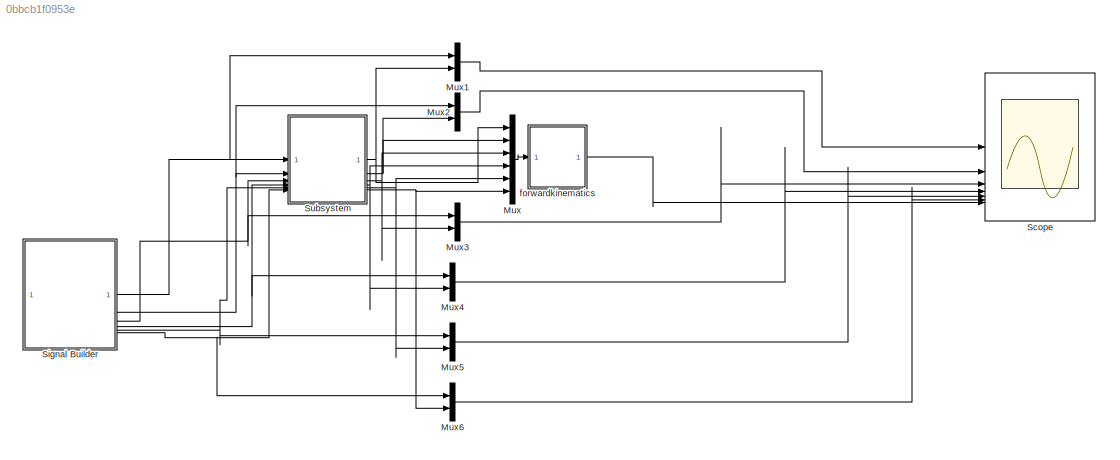
MODEL slx_0bbcb1f0953e
KIND model
CONFIG AbsTol = auto
CONFIG EnableMultiTasking = off
CONFIG FixedStep = auto
CONFIG MaxStep = auto
CONFIG MinStep = auto
CONFIG RelTol = 1e-3
CONFIG SampleTimeConstraint = Unconstrained
CONFIG SolverName = VariableStepAuto
CONFIG StartTime = 0.0
CONFIG StopTime = 10.0
BLOCK [Mux] Mux
  DisplayOption = bar
  Inputs = 6
BLOCK [Mux] Mux1
  DisplayOption = bar
  Inputs = 2
BLOCK [Mux] Mux2
  DisplayOption = bar
  Inputs = 2
BLOCK [Mux] Mux3
  DisplayOption = bar
  Inputs = 2
BLOCK [Mux] Mux4
  DisplayOption = bar
  Inputs = 2
BLOCK [Mux] Mux5
  DisplayOption = bar
  Inputs = 2
BLOCK [Mux] Mux6
  DisplayOption = bar
  Inputs = 2
BLOCK [Scope] Scope
  Floating = off
  NumInputPorts = 7
  ScopeSpecificationString = Simulink.scopes.TimeScopeBlockCfg('CurrentConfiguration', extmgr.ConfigurationSet(extmgr.Configuration('Core','General UI',true),extmgr.Configuration('Core','Source UI',true),extmgr.Configuration('Sources','WiredSimulink',true),extmgr.Configuration('Visuals','Time Domain',true,'SerializedDisplays',{struct('MinYLimReal','-0.16957','MaxYLimReal','1.41515','YLabelReal','','MinYLimMag','0.00000','MaxY...<+1347ch>
BLOCK [SubSystem] Signal Builder
  ClipboardFcn = sigbuilder_block('clipboard');
  CloseFcn = sigbuilder_block('close');
  ContinueFcn = sigbuilder_block('continue');
  CopyFcn = sigbuilder_block('copy');
  DeleteFcn = sigbuilder_block('delete');
  LoadFcn = sigbuilder_block('load');
  MaskHideContents = on
  ModelCloseFcn = sigbuilder_block('modelClose');
  NameChangeFcn = sigbuilder_block('namechange');
  OpenFcn = sigbuilder_block('open',[426 117 573 342.75 ]);
  PauseFcn = sigbuilder_block('pause');
  PreSaveFcn = sigbuilder_block('preSave');
  StartFcn = sigbuilder_block('start');
  StopFcn = sigbuilder_block('stop');
  Tag = STV Subsys
BLOCK [Demux] Signal Builder/Demux
  DisplayOption = none
  Outputs = 6
  Tag = STV Demux
BLOCK [FromWorkspace] Signal Builder/FromWs
  Tag = STV FromWs
  VariableName = tuvar
BLOCK [Outport] Signal Builder/Signal 1
  Tag = STV Outport
BLOCK [Outport] Signal Builder/Signal 2
  Port = 2
  Tag = STV Outport
BLOCK [Outport] Signal Builder/Signal 3
  Port = 3
  Tag = STV Outport
BLOCK [Outport] Signal Builder/Signal 4
  Port = 4
  Tag = STV Outport
BLOCK [Outport] Signal Builder/Signal 5
  Port = 5
  Tag = STV Outport
BLOCK [Outport] Signal Builder/Signal 6
  Port = 6
  Tag = STV Outport
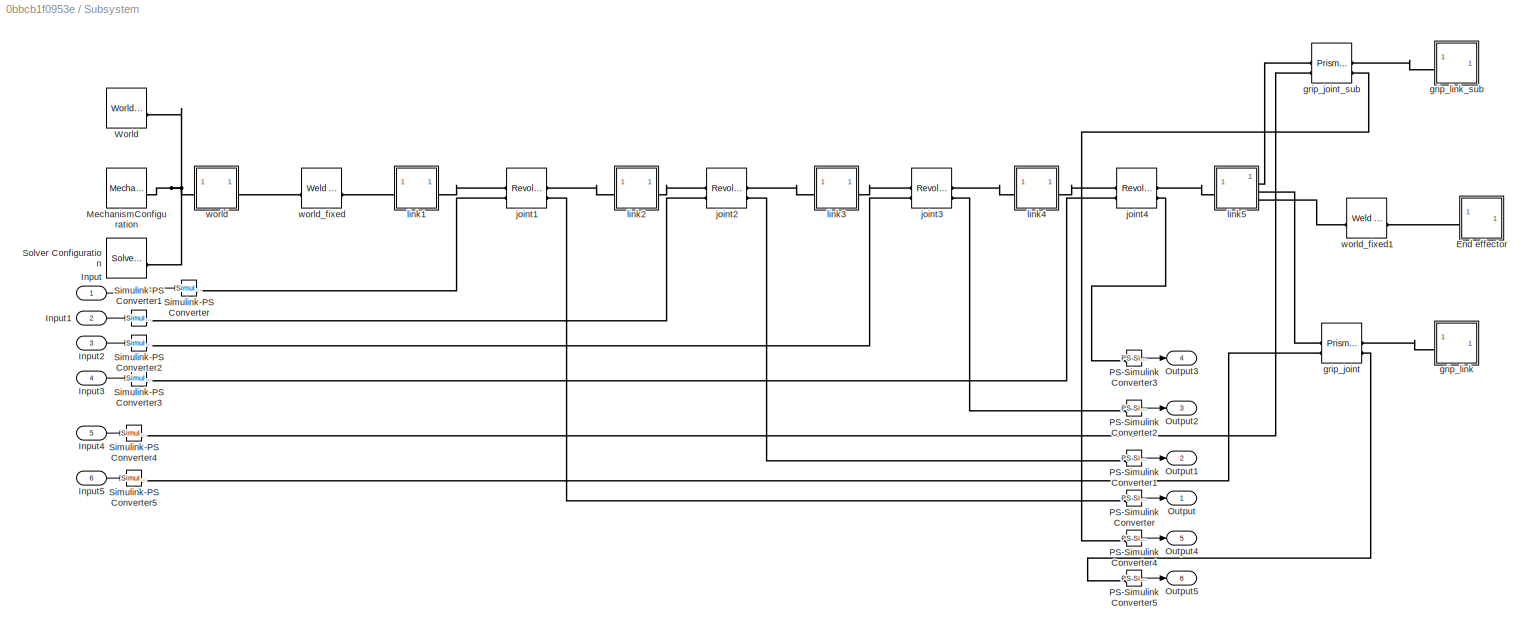
BLOCK [SubSystem] Subsystem
BLOCK [SubSystem] Subsystem/End effector
BLOCK [Reference] Subsystem/End effector/End   REF=sm_lib/Body Elements/Brick Solid
  SourceBlock = sm_lib/Body Elements/Brick Solid
  SourceType = Brick Solid
BLOCK [PMIOPort] Subsystem/End effector/F
  Side = Left
BLOCK [Reference] Subsystem/End effector/Inertia  REF=sm_lib/Body Elements/Inertia
  SourceBlock = sm_lib/Body Elements/Inertia
  SourceType = Inertia
BLOCK [Reference] Subsystem/End effector/InertiaOriginTransform  REF=sm_lib/Frames and
Transforms/Rigid
Transform
  SourceBlock = sm_lib/Frames and\nTransforms/Rigid\nTransform
  SourceType = Rigid\nTransform
BLOCK [Reference] Subsystem/End effector/ReferenceFrame  REF=sm_lib/Frames and
Transforms/Reference
Frame
  SourceBlock = sm_lib/Frames and\nTransforms/Reference\nFrame
  SourceType = Reference\nFrame
BLOCK [Reference] Subsystem/End effector/VisualOriginTransform  REF=sm_lib/Frames and
Transforms/Rigid
Transform
  SourceBlock = sm_lib/Frames and\nTransforms/Rigid\nTransform
  SourceType = Rigid\nTransform
BLOCK [Reference] Subsystem/End effector/grip_joint_sub_AxisInvTransform  REF=sm_lib/Frames and
Transforms/Rigid
Transform
  SourceBlock = sm_lib/Frames and\nTransforms/Rigid\nTransform
  SourceType = Rigid\nTransform
BLOCK [Inport] Subsystem/Input
BLOCK [Inport] Subsystem/Input1
  Port = 2
BLOCK [Inport] Subsystem/Input2
  Port = 3
BLOCK [Inport] Subsystem/Input3
  Port = 4
BLOCK [Inport] Subsystem/Input4
  Port = 5
BLOCK [Inport] Subsystem/Input5
  Port = 6
BLOCK [Reference] Subsystem/MechanismConfiguration  REF=sm_lib/Utilities/Mechanism
Configuration
  SourceBlock = sm_lib/Utilities/Mechanism\nConfiguration
  SourceType = Mechanism\nConfiguration
BLOCK [Outport] Subsystem/Output
BLOCK [Outport] Subsystem/Output1
  Port = 2
BLOCK [Outport] Subsystem/Output2
  Port = 3
BLOCK [Outport] Subsystem/Output3
  Port = 4
BLOCK [Outport] Subsystem/Output4
  Port = 5
BLOCK [Outport] Subsystem/Output5
  Port = 6
BLOCK [Reference] Subsystem/PS-Simulink Converter  REF=nesl_utility/PS-Simulink
Converter
  SourceBlock = nesl_utility/PS-Simulink\nConverter
  SourceType = PS-Simulink\nConverter
BLOCK [Reference] Subsystem/PS-Simulink Converter1  REF=nesl_utility/PS-Simulink
Converter
  SourceBlock = nesl_utility/PS-Simulink\nConverter
  SourceType = PS-Simulink\nConverter
BLOCK [Reference] Subsystem/PS-Simulink Converter2  REF=nesl_utility/PS-Simulink
Converter
  SourceBlock = nesl_utility/PS-Simulink\nConverter
  SourceType = PS-Simulink\nConverter
BLOCK [Reference] Subsystem/PS-Simulink Converter3  REF=nesl_utility/PS-Simulink
Converter
  SourceBlock = nesl_utility/PS-Simulink\nConverter
  SourceType = PS-Simulink\nConverter
BLOCK [Reference] Subsystem/PS-Simulink Converter4  REF=nesl_utility/PS-Simulink
Converter
  SourceBlock = nesl_utility/PS-Simulink\nConverter
  SourceType = PS-Simulink\nConverter
BLOCK [Reference] Subsystem/PS-Simulink Converter5  REF=nesl_utility/PS-Simulink
Converter
  SourceBlock = nesl_utility/PS-Simulink\nConverter
  SourceType = PS-Simulink\nConverter
BLOCK [Reference] Subsystem/Simulink-PS Converter  REF=nesl_utility/Simulink-PS
Converter
  SourceBlock = nesl_utility/Simulink-PS\nConverter
  SourceType = Simulink-PS\nConverter
BLOCK [Reference] Subsystem/Simulink-PS Converter1  REF=nesl_utility/Simulink-PS
Converter
  SourceBlock = nesl_utility/Simulink-PS\nConverter
  SourceType = Simulink-PS\nConverter
BLOCK [Reference] Subsystem/Simulink-PS Converter2  REF=nesl_utility/Simulink-PS
Converter
  SourceBlock = nesl_utility/Simulink-PS\nConverter
  SourceType = Simulink-PS\nConverter
BLOCK [Reference] Subsystem/Simulink-PS Converter3  REF=nesl_utility/Simulink-PS
Converter
  SourceBlock = nesl_utility/Simulink-PS\nConverter
  SourceType = Simulink-PS\nConverter
BLOCK [Reference] Subsystem/Simulink-PS Converter4  REF=nesl_utility/Simulink-PS
Converter
  SourceBlock = nesl_utility/Simulink-PS\nConverter
  SourceType = Simulink-PS\nConverter
BLOCK [Reference] Subsystem/Simulink-PS Converter5  REF=nesl_utility/Simulink-PS
Converter
  SourceBlock = nesl_utility/Simulink-PS\nConverter
  SourceType = Simulink-PS\nConverter
BLOCK [Reference] Subsystem/Solver Configuration  REF=nesl_utility/Solver
Configuration
  SourceBlock = nesl_utility/Solver\nConfiguration
  SourceType = Solver\nConfiguration
BLOCK [Reference] Subsystem/World  REF=sm_lib/Frames and
Transforms/World Frame
  SourceBlock = sm_lib/Frames and\nTransforms/World Frame
  SourceType = World Frame
BLOCK [Reference] Subsystem/grip_joint  REF=sm_lib/Joints/Prismatic
Joint
  SourceBlock = sm_lib/Joints/Prismatic\nJoint
  SourceType = Prismatic\nJoint
BLOCK [Reference] Subsystem/grip_joint_sub  REF=sm_lib/Joints/Prismatic
Joint
  SourceBlock = sm_lib/Joints/Prismatic\nJoint
  SourceType = Prismatic\nJoint
BLOCK [SubSystem] Subsystem/grip_link
BLOCK [PMIOPort] Subsystem/grip_link/F
  Side = Left
BLOCK [Reference] Subsystem/grip_link/Inertia  REF=sm_lib/Body Elements/Inertia
  SourceBlock = sm_lib/Body Elements/Inertia
  SourceType = Inertia
BLOCK [Reference] Subsystem/grip_link/InertiaOriginTransform  REF=sm_lib/Frames and
Transforms/Rigid
Transform
  SourceBlock = sm_lib/Frames and\nTransforms/Rigid\nTransform
  SourceType = Rigid\nTransform
BLOCK [Reference] Subsystem/grip_link/ReferenceFrame  REF=sm_lib/Frames and
Transforms/Reference
Frame
  SourceBlock = sm_lib/Frames and\nTransforms/Reference\nFrame
  SourceType = Reference\nFrame
BLOCK [Reference] Subsystem/grip_link/Visual  REF=sm_lib/Body Elements/File Solid
  SourceBlock = sm_lib/Body Elements/File Solid
  SourceType = File Solid
BLOCK [Reference] Subsystem/grip_link/VisualOriginTransform  REF=sm_lib/Frames and
Transforms/Rigid
Transform
  SourceBlock = sm_lib/Frames and\nTransforms/Rigid\nTransform
  SourceType = Rigid\nTransform
BLOCK [Reference] Subsystem/grip_link/grip_joint_AxisInvTransform  REF=sm_lib/Frames and
Transforms/Rigid
Transform
  SourceBlock = sm_lib/Frames and\nTransforms/Rigid\nTransform
  SourceType = Rigid\nTransform
BLOCK [SubSystem] Subsystem/grip_link_sub
BLOCK [PMIOPort] Subsystem/grip_link_sub/F
  Side = Left
BLOCK [Reference] Subsystem/grip_link_sub/Inertia  REF=sm_lib/Body Elements/Inertia
  SourceBlock = sm_lib/Body Elements/Inertia
  SourceType = Inertia
BLOCK [Reference] Subsystem/grip_link_sub/InertiaOriginTransform  REF=sm_lib/Frames and
Transforms/Rigid
Transform
  SourceBlock = sm_lib/Frames and\nTransforms/Rigid\nTransform
  SourceType = Rigid\nTransform
BLOCK [Reference] Subsystem/grip_link_sub/ReferenceFrame  REF=sm_lib/Frames and
Transforms/Reference
Frame
  SourceBlock = sm_lib/Frames and\nTransforms/Reference\nFrame
  SourceType = Reference\nFrame
BLOCK [Reference] Subsystem/grip_link_sub/Visual  REF=sm_lib/Body Elements/File Solid
  SourceBlock = sm_lib/Body Elements/File Solid
  SourceType = File Solid
BLOCK [Reference] Subsystem/grip_link_sub/VisualOriginTransform  REF=sm_lib/Frames and
Transforms/Rigid
Transform
  SourceBlock = sm_lib/Frames and\nTransforms/Rigid\nTransform
  SourceType = Rigid\nTransform
BLOCK [Reference] Subsystem/grip_link_sub/grip_joint_sub_AxisInvTransform  REF=sm_lib/Frames and
Transforms/Rigid
Transform
  SourceBlock = sm_lib/Frames and\nTransforms/Rigid\nTransform
  SourceType = Rigid\nTransform
BLOCK [Reference] Subsystem/joint1  REF=sm_lib/Joints/Revolute Joint
  SourceBlock = sm_lib/Joints/Revolute Joint
  SourceType = Revolute Joint
BLOCK [Reference] Subsystem/joint2  REF=sm_lib/Joints/Revolute Joint
  SourceBlock = sm_lib/Joints/Revolute Joint
  SourceType = Revolute Joint
BLOCK [Reference] Subsystem/joint3  REF=sm_lib/Joints/Revolute Joint
  SourceBlock = sm_lib/Joints/Revolute Joint
  SourceType = Revolute Joint
BLOCK [Reference] Subsystem/joint4  REF=sm_lib/Joints/Revolute Joint
  SourceBlock = sm_lib/Joints/Revolute Joint
  SourceType = Revolute Joint
BLOCK [SubSystem] Subsystem/link1
BLOCK [PMIOPort] Subsystem/link1/F
  Side = Left
BLOCK [PMIOPort] Subsystem/link1/F1
  Port = 2
  Side = Right
BLOCK [Reference] Subsystem/link1/Inertia  REF=sm_lib/Body Elements/Inertia
  SourceBlock = sm_lib/Body Elements/Inertia
  SourceType = Inertia
BLOCK [Reference] Subsystem/link1/InertiaOriginTransform  REF=sm_lib/Frames and
Transforms/Rigid
Transform
  SourceBlock = sm_lib/Frames and\nTransforms/Rigid\nTransform
  SourceType = Rigid\nTransform
BLOCK [Reference] Subsystem/link1/ReferenceFrame  REF=sm_lib/Frames and
Transforms/Reference
Frame
  SourceBlock = sm_lib/Frames and\nTransforms/Reference\nFrame
  SourceType = Reference\nFrame
BLOCK [Reference] Subsystem/link1/Visual  REF=sm_lib/Body Elements/File Solid
  SourceBlock = sm_lib/Body Elements/File Solid
  SourceType = File Solid
BLOCK [Reference] Subsystem/link1/VisualOriginTransform  REF=sm_lib/Frames and
Transforms/Rigid
Transform
  SourceBlock = sm_lib/Frames and\nTransforms/Rigid\nTransform
  SourceType = Rigid\nTransform
BLOCK [Reference] Subsystem/link1/joint1_AxisTransform  REF=sm_lib/Frames and
Transforms/Rigid
Transform
  SourceBlock = sm_lib/Frames and\nTransforms/Rigid\nTransform
  SourceType = Rigid\nTransform
BLOCK [Reference] Subsystem/link1/joint1_OriginTransform  REF=sm_lib/Frames and
Transforms/Rigid
Transform
  SourceBlock = sm_lib/Frames and\nTransforms/Rigid\nTransform
  SourceType = Rigid\nTransform
BLOCK [SubSystem] Subsystem/link2
BLOCK [PMIOPort] Subsystem/link2/F
  Side = Left
BLOCK [PMIOPort] Subsystem/link2/F1
  Port = 2
  Side = Right
BLOCK [Reference] Subsystem/link2/Inertia  REF=sm_lib/Body Elements/Inertia
  SourceBlock = sm_lib/Body Elements/Inertia
  SourceType = Inertia
BLOCK [Reference] Subsystem/link2/InertiaOriginTransform  REF=sm_lib/Frames and
Transforms/Rigid
Transform
  SourceBlock = sm_lib/Frames and\nTransforms/Rigid\nTransform
  SourceType = Rigid\nTransform
BLOCK [Reference] Subsystem/link2/ReferenceFrame  REF=sm_lib/Frames and
Transforms/Reference
Frame
  SourceBlock = sm_lib/Frames and\nTransforms/Reference\nFrame
  SourceType = Reference\nFrame
BLOCK [Reference] Subsystem/link2/Visual  REF=sm_lib/Body Elements/File Solid
  SourceBlock = sm_lib/Body Elements/File Solid
  SourceType = File Solid
BLOCK [Reference] Subsystem/link2/VisualOriginTransform  REF=sm_lib/Frames and
Transforms/Rigid
Transform
  SourceBlock = sm_lib/Frames and\nTransforms/Rigid\nTransform
  SourceType = Rigid\nTransform
BLOCK [Reference] Subsystem/link2/joint1_AxisInvTransform  REF=sm_lib/Frames and
Transforms/Rigid
Transform
  SourceBlock = sm_lib/Frames and\nTransforms/Rigid\nTransform
  SourceType = Rigid\nTransform
BLOCK [Reference] Subsystem/link2/joint2_AxisTransform  REF=sm_lib/Frames and
Transforms/Rigid
Transform
  SourceBlock = sm_lib/Frames and\nTransforms/Rigid\nTransform
  SourceType = Rigid\nTransform
BLOCK [Reference] Subsystem/link2/joint2_OriginTransform  REF=sm_lib/Frames and
Transforms/Rigid
Transform
  SourceBlock = sm_lib/Frames and\nTransforms/Rigid\nTransform
  SourceType = Rigid\nTransform
BLOCK [SubSystem] Subsystem/link3
BLOCK [PMIOPort] Subsystem/link3/F
  Side = Left
BLOCK [PMIOPort] Subsystem/link3/F1
  Port = 2
  Side = Right
BLOCK [Reference] Subsystem/link3/Inertia  REF=sm_lib/Body Elements/Inertia
  SourceBlock = sm_lib/Body Elements/Inertia
  SourceType = Inertia
BLOCK [Reference] Subsystem/link3/InertiaOriginTransform  REF=sm_lib/Frames and
Transforms/Rigid
Transform
  SourceBlock = sm_lib/Frames and\nTransforms/Rigid\nTransform
  SourceType = Rigid\nTransform
BLOCK [Reference] Subsystem/link3/ReferenceFrame  REF=sm_lib/Frames and
Transforms/Reference
Frame
  SourceBlock = sm_lib/Frames and\nTransforms/Reference\nFrame
  SourceType = Reference\nFrame
BLOCK [Reference] Subsystem/link3/Visual  REF=sm_lib/Body Elements/File Solid
  SourceBlock = sm_lib/Body Elements/File Solid
  SourceType = File Solid
BLOCK [Reference] Subsystem/link3/VisualOriginTransform  REF=sm_lib/Frames and
Transforms/Rigid
Transform
  SourceBlock = sm_lib/Frames and\nTransforms/Rigid\nTransform
  SourceType = Rigid\nTransform
BLOCK [Reference] Subsystem/link3/joint2_AxisInvTransform  REF=sm_lib/Frames and
Transforms/Rigid
Transform
  SourceBlock = sm_lib/Frames and\nTransforms/Rigid\nTransform
  SourceType = Rigid\nTransform
BLOCK [Reference] Subsystem/link3/joint3_AxisTransform  REF=sm_lib/Frames and
Transforms/Rigid
Transform
  SourceBlock = sm_lib/Frames and\nTransforms/Rigid\nTransform
  SourceType = Rigid\nTransform
BLOCK [Reference] Subsystem/link3/joint3_OriginTransform  REF=sm_lib/Frames and
Transforms/Rigid
Transform
  SourceBlock = sm_lib/Frames and\nTransforms/Rigid\nTransform
  SourceType = Rigid\nTransform
BLOCK [SubSystem] Subsystem/link4
BLOCK [PMIOPort] Subsystem/link4/F
  Side = Left
BLOCK [PMIOPort] Subsystem/link4/F1
  Port = 2
  Side = Right
BLOCK [Reference] Subsystem/link4/Inertia  REF=sm_lib/Body Elements/Inertia
  SourceBlock = sm_lib/Body Elements/Inertia
  SourceType = Inertia
BLOCK [Reference] Subsystem/link4/InertiaOriginTransform  REF=sm_lib/Frames and
Transforms/Rigid
Transform
  SourceBlock = sm_lib/Frames and\nTransforms/Rigid\nTransform
  SourceType = Rigid\nTransform
BLOCK [Reference] Subsystem/link4/ReferenceFrame  REF=sm_lib/Frames and
Transforms/Reference
Frame
  SourceBlock = sm_lib/Frames and\nTransforms/Reference\nFrame
  SourceType = Reference\nFrame
BLOCK [Reference] Subsystem/link4/Visual  REF=sm_lib/Body Elements/File Solid
  SourceBlock = sm_lib/Body Elements/File Solid
  SourceType = File Solid
BLOCK [Reference] Subsystem/link4/VisualOriginTransform  REF=sm_lib/Frames and
Transforms/Rigid
Transform
  SourceBlock = sm_lib/Frames and\nTransforms/Rigid\nTransform
  SourceType = Rigid\nTransform
BLOCK [Reference] Subsystem/link4/joint3_AxisInvTransform  REF=sm_lib/Frames and
Transforms/Rigid
Transform
  SourceBlock = sm_lib/Frames and\nTransforms/Rigid\nTransform
  SourceType = Rigid\nTransform
BLOCK [Reference] Subsystem/link4/joint4_AxisTransform  REF=sm_lib/Frames and
Transforms/Rigid
Transform
  SourceBlock = sm_lib/Frames and\nTransforms/Rigid\nTransform
  SourceType = Rigid\nTransform
BLOCK [Reference] Subsystem/link4/joint4_OriginTransform  REF=sm_lib/Frames and
Transforms/Rigid
Transform
  SourceBlock = sm_lib/Frames and\nTransforms/Rigid\nTransform
  SourceType = Rigid\nTransform
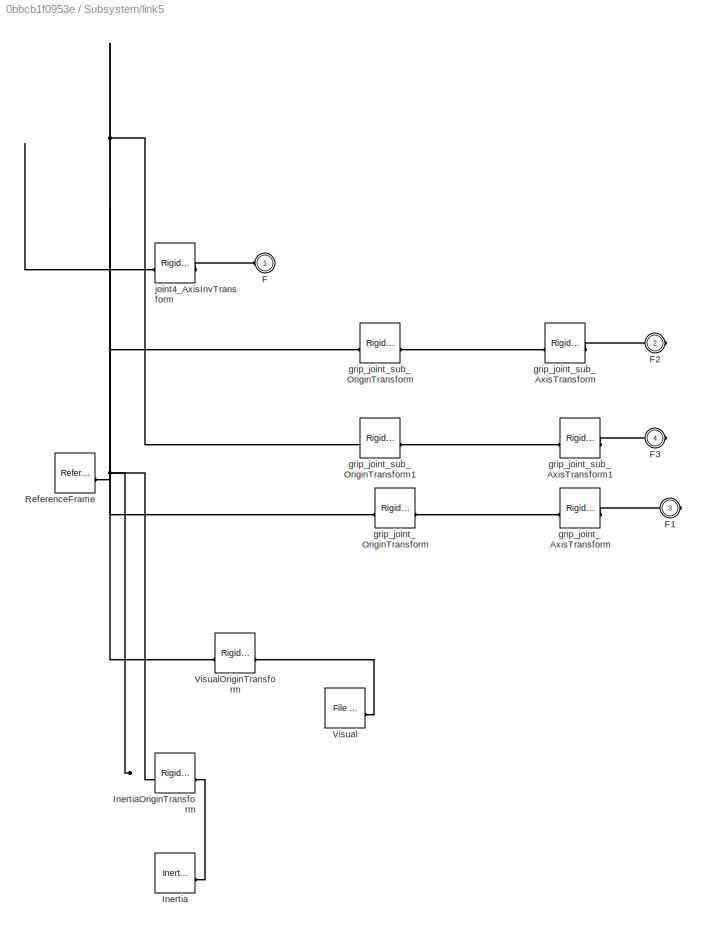
BLOCK [SubSystem] Subsystem/link5
BLOCK [PMIOPort] Subsystem/link5/F
  Side = Left
BLOCK [PMIOPort] Subsystem/link5/F1
  Port = 3
  Side = Right
BLOCK [PMIOPort] Subsystem/link5/F2
  Port = 2
  Side = Right
BLOCK [PMIOPort] Subsystem/link5/F3
  Port = 4
  Side = Right
BLOCK [Reference] Subsystem/link5/Inertia  REF=sm_lib/Body Elements/Inertia
  SourceBlock = sm_lib/Body Elements/Inertia
  SourceType = Inertia
BLOCK [Reference] Subsystem/link5/InertiaOriginTransform  REF=sm_lib/Frames and
Transforms/Rigid
Transform
  SourceBlock = sm_lib/Frames and\nTransforms/Rigid\nTransform
  SourceType = Rigid\nTransform
BLOCK [Reference] Subsystem/link5/ReferenceFrame  REF=sm_lib/Frames and
Transforms/Reference
Frame
  SourceBlock = sm_lib/Frames and\nTransforms/Reference\nFrame
  SourceType = Reference\nFrame
BLOCK [Reference] Subsystem/link5/Visual  REF=sm_lib/Body Elements/File Solid
  SourceBlock = sm_lib/Body Elements/File Solid
  SourceType = File Solid
BLOCK [Reference] Subsystem/link5/VisualOriginTransform  REF=sm_lib/Frames and
Transforms/Rigid
Transform
  SourceBlock = sm_lib/Frames and\nTransforms/Rigid\nTransform
  SourceType = Rigid\nTransform
BLOCK [Reference] Subsystem/link5/grip_joint_AxisTransform  REF=sm_lib/Frames and
Transforms/Rigid
Transform
  SourceBlock = sm_lib/Frames and\nTransforms/Rigid\nTransform
  SourceType = Rigid\nTransform
BLOCK [Reference] Subsystem/link5/grip_joint_OriginTransform  REF=sm_lib/Frames and
Transforms/Rigid
Transform
  SourceBlock = sm_lib/Frames and\nTransforms/Rigid\nTransform
  SourceType = Rigid\nTransform
BLOCK [Reference] Subsystem/link5/grip_joint_sub_AxisTransform  REF=sm_lib/Frames and
Transforms/Rigid
Transform
  SourceBlock = sm_lib/Frames and\nTransforms/Rigid\nTransform
  SourceType = Rigid\nTransform
BLOCK [Reference] Subsystem/link5/grip_joint_sub_AxisTransform1  REF=sm_lib/Frames and
Transforms/Rigid
Transform
  SourceBlock = sm_lib/Frames and\nTransforms/Rigid\nTransform
  SourceType = Rigid\nTransform
BLOCK [Reference] Subsystem/link5/grip_joint_sub_OriginTransform  REF=sm_lib/Frames and
Transforms/Rigid
Transform
  SourceBlock = sm_lib/Frames and\nTransforms/Rigid\nTransform
  SourceType = Rigid\nTransform
BLOCK [Reference] Subsystem/link5/grip_joint_sub_OriginTransform1  REF=sm_lib/Frames and
Transforms/Rigid
Transform
  SourceBlock = sm_lib/Frames and\nTransforms/Rigid\nTransform
  SourceType = Rigid\nTransform
BLOCK [Reference] Subsystem/link5/joint4_AxisInvTransform  REF=sm_lib/Frames and
Transforms/Rigid
Transform
  SourceBlock = sm_lib/Frames and\nTransforms/Rigid\nTransform
  SourceType = Rigid\nTransform
BLOCK [SubSystem] Subsystem/world
BLOCK [PMIOPort] Subsystem/world/F
  Side = Left
BLOCK [PMIOPort] Subsystem/world/F1
  Port = 2
  Side = Right
BLOCK [Reference] Subsystem/world/ReferenceFrame  REF=sm_lib/Frames and
Transforms/Reference
Frame
  SourceBlock = sm_lib/Frames and\nTransforms/Reference\nFrame
  SourceType = Reference\nFrame
BLOCK [Reference] Subsystem/world/world_fixed_OriginTransform  REF=sm_lib/Frames and
Transforms/Rigid
Transform
  SourceBlock = sm_lib/Frames and\nTransforms/Rigid\nTransform
  SourceType = Rigid\nTransform
BLOCK [Reference] Subsystem/world_fixed  REF=sm_lib/Joints/Weld Joint
  SourceBlock = sm_lib/Joints/Weld Joint
  SourceType = Weld Joint
BLOCK [Reference] Subsystem/world_fixed1  REF=sm_lib/Joints/Weld Joint
  SourceBlock = sm_lib/Joints/Weld Joint
  SourceType = Weld Joint
BLOCK [SubSystem] forwardkinematics
BLOCK [Inport] forwardkinematics/Config
BLOCK [Reference] forwardkinematics/Coordinate Transformation Conversion  REF=robotcorelib/Coordinate Transformation Conversion
  LibrarySourceBlock = robotutilslib/Coordinate Transformation Conversion
  SourceBlock = robotcorelib/Coordinate Transformation Conversion
  SourceType = robotics.slcore.internal.block.CoordinateTransformationConversion
BLOCK [Reference] forwardkinematics/Get Transform  REF=robotmaniplib/Get Transform
  SourceBlock = robotmaniplib/Get Transform
  SourceType = Get Transform
BLOCK [Outport] forwardkinematics/xyz
LINE Mux1:1 -> Scope:1
LINE Mux2:1 -> Scope:2
LINE Mux3:1 -> Scope:3
LINE Mux4:1 -> Scope:4
LINE Mux5:1 -> Scope:5
LINE Mux6:1 -> Scope:6
LINE Mux:1 -> forwardkinematics:1
NET Signal Builder:1 -> Mux1:1, Subsystem:1
NET Signal Builder:2 -> Mux2:1, Subsystem:2
NET Signal Builder:3 -> Mux3:1, Subsystem:3
NET Signal Builder:4 -> Mux4:1, Subsystem:4
NET Signal Builder:5 -> Mux5:1, Subsystem:5
NET Signal Builder:6 -> Mux6:1, Subsystem:6
LINE Subsystem/Input1:1 -> Subsystem/Simulink-PS Converter1:1
LINE Subsystem/Input2:1 -> Subsystem/Simulink-PS Converter2:1
LINE Subsystem/Input3:1 -> Subsystem/Simulink-PS Converter3:1
LINE Subsystem/Input4:1 -> Subsystem/Simulink-PS Converter4:1
LINE Subsystem/Input5:1 -> Subsystem/Simulink-PS Converter5:1
LINE Subsystem/Input:1 -> Subsystem/Simulink-PS Converter:1
LINE Subsystem/PS-Simulink Converter1:1 -> Subsystem/Output1:1
LINE Subsystem/PS-Simulink Converter2:1 -> Subsystem/Output2:1
LINE Subsystem/PS-Simulink Converter3:1 -> Subsystem/Output3:1
LINE Subsystem/PS-Simulink Converter4:1 -> Subsystem/Output4:1
LINE Subsystem/PS-Simulink Converter5:1 -> Subsystem/Output5:1
LINE Subsystem/PS-Simulink Converter:1 -> Subsystem/Output:1
NET Subsystem:1 -> Mux1:2, Mux:1
NET Subsystem:2 -> Mux2:2, Mux:2
NET Subsystem:3 -> Mux3:2, Mux:3
NET Subsystem:4 -> Mux4:2, Mux:4
NET Subsystem:5 -> Mux5:2, Mux:5
NET Subsystem:6 -> Mux6:2, Mux:6
LINE forwardkinematics/Config:1 -> forwardkinematics/Get Transform:1
LINE forwardkinematics/Coordinate Transformation Conversion:1 -> forwardkinematics/xyz:1
LINE forwardkinematics/Get Transform:1 -> forwardkinematics/Coordinate Transformation Conversion:1
LINE forwardkinematics:1 -> Scope:7
PLINE Subsystem/End effector/End :RConn1 -- Subsystem/End effector/VisualOriginTransform:RConn1
PLINE Subsystem/End effector/F:RConn1 -- Subsystem/End effector/grip_joint_sub_AxisInvTransform:RConn1
PLINE Subsystem/End effector/Inertia:RConn1 -- Subsystem/End effector/InertiaOriginTransform:RConn1
PNET net1: Subsystem/End effector/InertiaOriginTransform:LConn1 -- Subsystem/End effector/ReferenceFrame:RConn1 -- Subsystem/End effector/VisualOriginTransform:LConn1 -- Subsystem/End effector/grip_joint_sub_AxisInvTransform:LConn1
PLINE Subsystem/End effector:LConn1 -- Subsystem/world_fixed1:RConn1
PNET net2: Subsystem/MechanismConfiguration:RConn1 -- Subsystem/Solver Configuration:RConn1 -- Subsystem/World:RConn1 -- Subsystem/world:LConn1
PLINE Subsystem/PS-Simulink Converter1:LConn1 -- Subsystem/joint2:RConn2
PLINE Subsystem/PS-Simulink Converter2:LConn1 -- Subsystem/joint3:RConn2
PLINE Subsystem/PS-Simulink Converter3:LConn1 -- Subsystem/joint4:RConn2
PLINE Subsystem/PS-Simulink Converter4:LConn1 -- Subsystem/grip_joint_sub:RConn2
PLINE Subsystem/PS-Simulink Converter5:LConn1 -- Subsystem/grip_joint:RConn2
PLINE Subsystem/PS-Simulink Converter:LConn1 -- Subsystem/joint1:RConn2
PLINE Subsystem/Simulink-PS Converter1:RConn1 -- Subsystem/joint2:LConn2
PLINE Subsystem/Simulink-PS Converter2:RConn1 -- Subsystem/joint3:LConn2
PLINE Subsystem/Simulink-PS Converter3:RConn1 -- Subsystem/joint4:LConn2
PLINE Subsystem/Simulink-PS Converter4:RConn1 -- Subsystem/grip_joint_sub:LConn2
PLINE Subsystem/Simulink-PS Converter5:RConn1 -- Subsystem/grip_joint:LConn2
PLINE Subsystem/Simulink-PS Converter:RConn1 -- Subsystem/joint1:LConn2
PLINE Subsystem/grip_joint:LConn1 -- Subsystem/link5:RConn2
PLINE Subsystem/grip_joint:RConn1 -- Subsystem/grip_link:LConn1
PLINE Subsystem/grip_joint_sub:LConn1 -- Subsystem/link5:RConn1
PLINE Subsystem/grip_joint_sub:RConn1 -- Subsystem/grip_link_sub:LConn1
PLINE Subsystem/grip_link/F:RConn1 -- Subsystem/grip_link/grip_joint_AxisInvTransform:RConn1
PLINE Subsystem/grip_link/Inertia:RConn1 -- Subsystem/grip_link/InertiaOriginTransform:RConn1
PNET net3: Subsystem/grip_link/InertiaOriginTransform:LConn1 -- Subsystem/grip_link/ReferenceFrame:RConn1 -- Subsystem/grip_link/VisualOriginTransform:LConn1 -- Subsystem/grip_link/grip_joint_AxisInvTransform:LConn1
PLINE Subsystem/grip_link/Visual:RConn1 -- Subsystem/grip_link/VisualOriginTransform:RConn1
PLINE Subsystem/grip_link_sub/F:RConn1 -- Subsystem/grip_link_sub/grip_joint_sub_AxisInvTransform:RConn1
PLINE Subsystem/grip_link_sub/Inertia:RConn1 -- Subsystem/grip_link_sub/InertiaOriginTransform:RConn1
PNET net4: Subsystem/grip_link_sub/InertiaOriginTransform:LConn1 -- Subsystem/grip_link_sub/ReferenceFrame:RConn1 -- Subsystem/grip_link_sub/VisualOriginTransform:LConn1 -- Subsystem/grip_link_sub/grip_joint_sub_AxisInvTransform:LConn1
PLINE Subsystem/grip_link_sub/Visual:RConn1 -- Subsystem/grip_link_sub/VisualOriginTransform:RConn1
PLINE Subsystem/joint1:LConn1 -- Subsystem/link1:RConn1
PLINE Subsystem/joint1:RConn1 -- Subsystem/link2:LConn1
PLINE Subsystem/joint2:LConn1 -- Subsystem/link2:RConn1
PLINE Subsystem/joint2:RConn1 -- Subsystem/link3:LConn1
PLINE Subsystem/joint3:LConn1 -- Subsystem/link3:RConn1
PLINE Subsystem/joint3:RConn1 -- Subsystem/link4:LConn1
PLINE Subsystem/joint4:LConn1 -- Subsystem/link4:RConn1
PLINE Subsystem/joint4:RConn1 -- Subsystem/link5:LConn1
PLINE Subsystem/link1/F1:RConn1 -- Subsystem/link1/joint1_AxisTransform:RConn1
PNET net5: Subsystem/link1/F:RConn1 -- Subsystem/link1/InertiaOriginTransform:LConn1 -- Subsystem/link1/ReferenceFrame:RConn1 -- Subsystem/link1/VisualOriginTransform:LConn1 -- Subsystem/link1/joint1_OriginTransform:LConn1
PLINE Subsystem/link1/Inertia:RConn1 -- Subsystem/link1/InertiaOriginTransform:RConn1
PLINE Subsystem/link1/Visual:RConn1 -- Subsystem/link1/VisualOriginTransform:RConn1
PLINE Subsystem/link1/joint1_AxisTransform:LConn1 -- Subsystem/link1/joint1_OriginTransform:RConn1
PLINE Subsystem/link1:LConn1 -- Subsystem/world_fixed:RConn1
PLINE Subsystem/link2/F1:RConn1 -- Subsystem/link2/joint2_AxisTransform:RConn1
PLINE Subsystem/link2/F:RConn1 -- Subsystem/link2/joint1_AxisInvTransform:RConn1
PLINE Subsystem/link2/Inertia:RConn1 -- Subsystem/link2/InertiaOriginTransform:RConn1
PNET net6: Subsystem/link2/InertiaOriginTransform:LConn1 -- Subsystem/link2/ReferenceFrame:RConn1 -- Subsystem/link2/VisualOriginTransform:LConn1 -- Subsystem/link2/joint1_AxisInvTransform:LConn1 -- Subsystem/link2/joint2_OriginTransform:LConn1
PLINE Subsystem/link2/Visual:RConn1 -- Subsystem/link2/VisualOriginTransform:RConn1
PLINE Subsystem/link2/joint2_AxisTransform:LConn1 -- Subsystem/link2/joint2_OriginTransform:RConn1
PLINE Subsystem/link3/F1:RConn1 -- Subsystem/link3/joint3_AxisTransform:RConn1
PLINE Subsystem/link3/F:RConn1 -- Subsystem/link3/joint2_AxisInvTransform:RConn1
PLINE Subsystem/link3/Inertia:RConn1 -- Subsystem/link3/InertiaOriginTransform:RConn1
PNET net7: Subsystem/link3/InertiaOriginTransform:LConn1 -- Subsystem/link3/ReferenceFrame:RConn1 -- Subsystem/link3/VisualOriginTransform:LConn1 -- Subsystem/link3/joint2_AxisInvTransform:LConn1 -- Subsystem/link3/joint3_OriginTransform:LConn1
PLINE Subsystem/link3/Visual:RConn1 -- Subsystem/link3/VisualOriginTransform:RConn1
PLINE Subsystem/link3/joint3_AxisTransform:LConn1 -- Subsystem/link3/joint3_OriginTransform:RConn1
PLINE Subsystem/link4/F1:RConn1 -- Subsystem/link4/joint4_AxisTransform:RConn1
PLINE Subsystem/link4/F:RConn1 -- Subsystem/link4/joint3_AxisInvTransform:RConn1
PLINE Subsystem/link4/Inertia:RConn1 -- Subsystem/link4/InertiaOriginTransform:RConn1
PNET net8: Subsystem/link4/InertiaOriginTransform:LConn1 -- Subsystem/link4/ReferenceFrame:RConn1 -- Subsystem/link4/VisualOriginTransform:LConn1 -- Subsystem/link4/joint3_AxisInvTransform:LConn1 -- Subsystem/link4/joint4_OriginTransform:LConn1
PLINE Subsystem/link4/Visual:RConn1 -- Subsystem/link4/VisualOriginTransform:RConn1
PLINE Subsystem/link4/joint4_AxisTransform:LConn1 -- Subsystem/link4/joint4_OriginTransform:RConn1
PLINE Subsystem/link5/F1:RConn1 -- Subsystem/link5/grip_joint_AxisTransform:RConn1
PLINE Subsystem/link5/F2:RConn1 -- Subsystem/link5/grip_joint_sub_AxisTransform:RConn1
PLINE Subsystem/link5/F3:RConn1 -- Subsystem/link5/grip_joint_sub_AxisTransform1:RConn1
PLINE Subsystem/link5/F:RConn1 -- Subsystem/link5/joint4_AxisInvTransform:RConn1
PLINE Subsystem/link5/Inertia:RConn1 -- Subsystem/link5/InertiaOriginTransform:RConn1
PNET net9: Subsystem/link5/InertiaOriginTransform:LConn1 -- Subsystem/link5/ReferenceFrame:RConn1 -- Subsystem/link5/VisualOriginTransform:LConn1 -- Subsystem/link5/grip_joint_OriginTransform:LConn1 -- Subsystem/link5/grip_joint_sub_OriginTransform1:LConn1 -- Subsystem/link5/grip_joint_sub_OriginTransform:LConn1 -- Subsystem/link5/joint4_AxisInvTransform:LConn1
PLINE Subsystem/link5/Visual:RConn1 -- Subsystem/link5/VisualOriginTransform:RConn1
PLINE Subsystem/link5/grip_joint_AxisTransform:LConn1 -- Subsystem/link5/grip_joint_OriginTransform:RConn1
PLINE Subsystem/link5/grip_joint_sub_AxisTransform1:LConn1 -- Subsystem/link5/grip_joint_sub_OriginTransform1:RConn1
PLINE Subsystem/link5/grip_joint_sub_AxisTransform:LConn1 -- Subsystem/link5/grip_joint_sub_OriginTransform:RConn1
PLINE Subsystem/link5:RConn3 -- Subsystem/world_fixed1:LConn1
PLINE Subsystem/world/F1:RConn1 -- Subsystem/world/world_fixed_OriginTransform:RConn1
PNET net10: Subsystem/world/F:RConn1 -- Subsystem/world/ReferenceFrame:RConn1 -- Subsystem/world/world_fixed_OriginTransform:LConn1
PLINE Subsystem/world:RConn1 -- Subsystem/world_fixed:LConn1
note: NET lines group one-source signal fan-out (src -> all destinations, sorted); 1:1 wires keep LINE; PNET lines group multi-terminal physical nets as a canonical sorted terminal list (undirected conserving connections); 2-terminal nets keep the pairwise PLINE form
